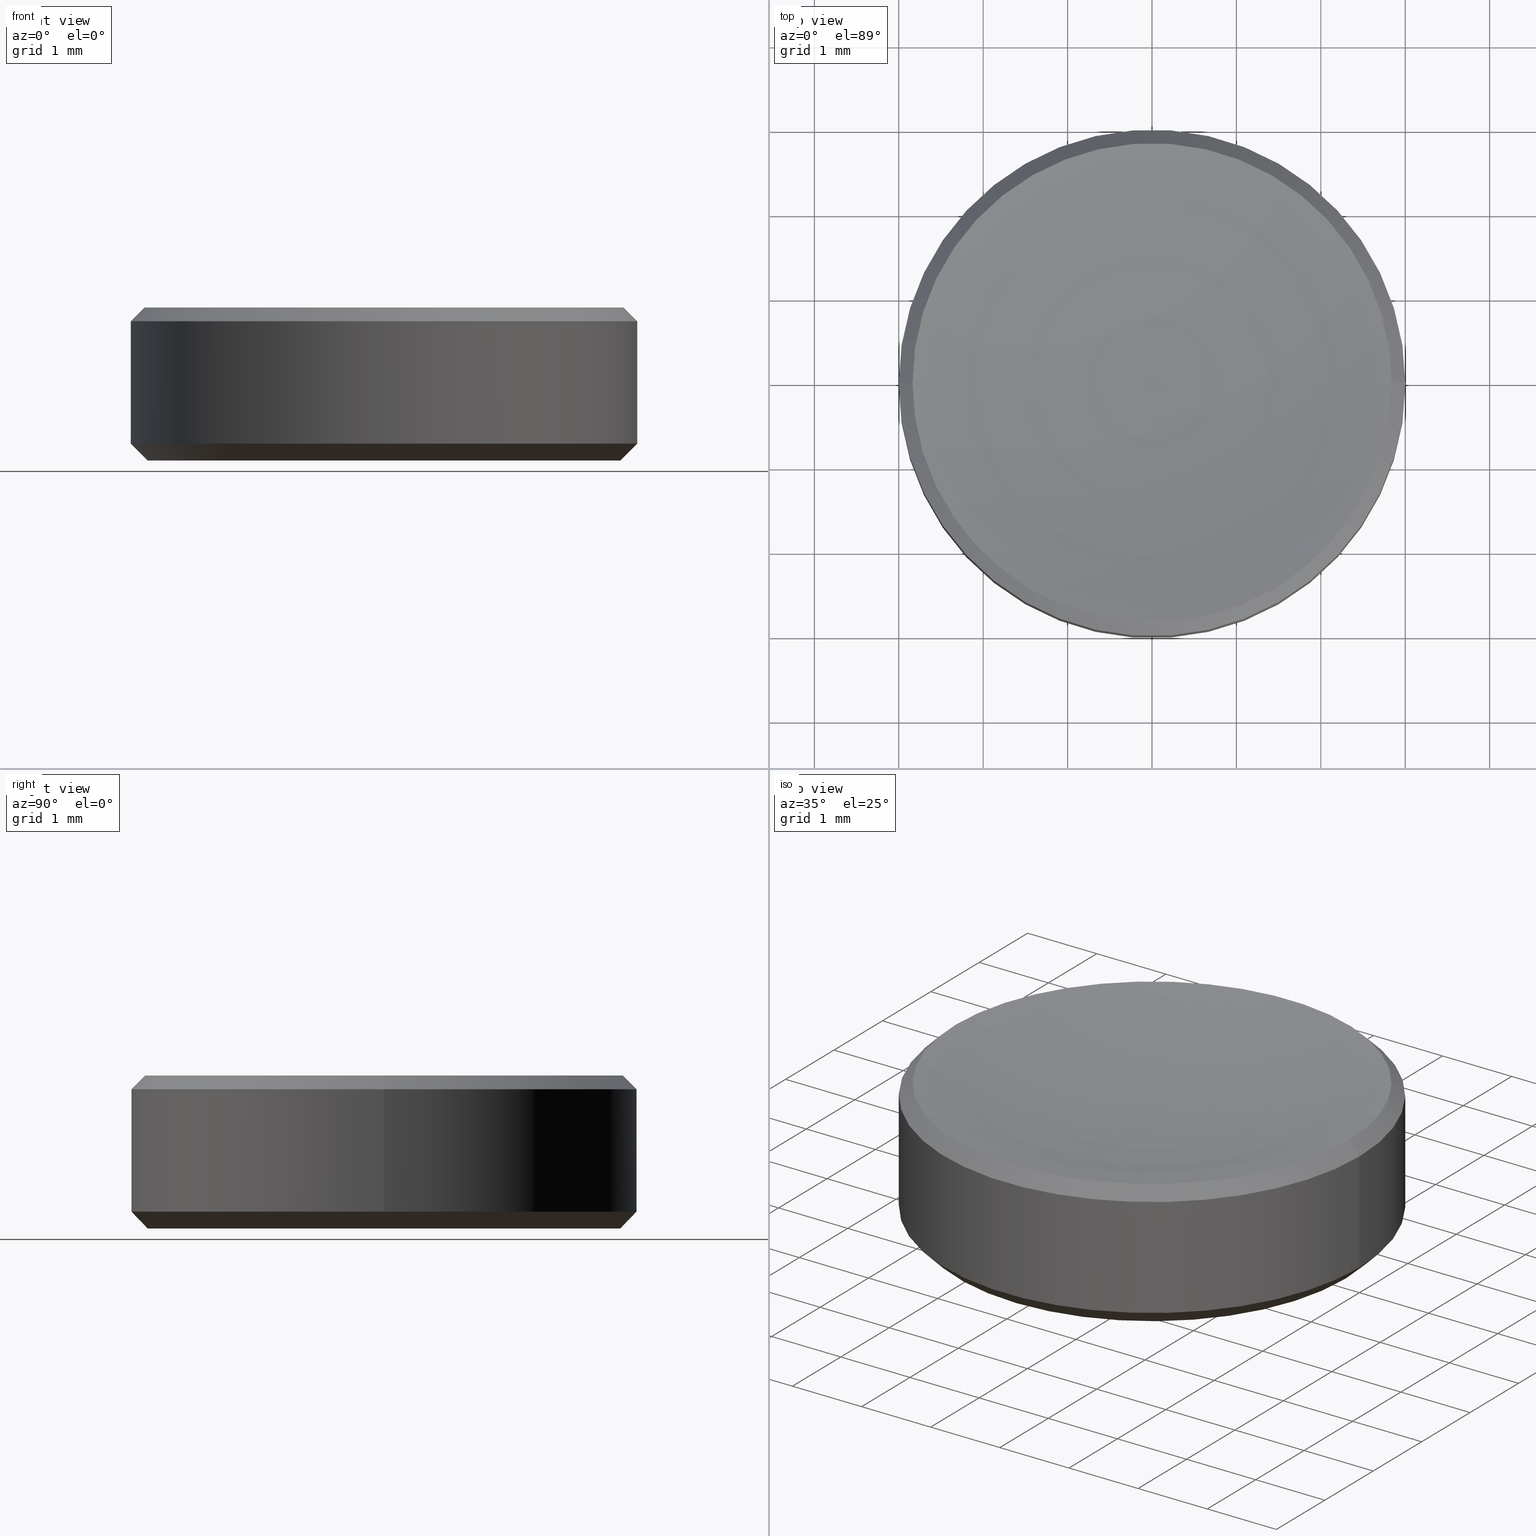
[diagram: canonical four-view strip — front | top / right | iso, engineering-drawing reading convention]
A machine part, canonical four-view strip (front | top / right | iso — engineering-drawing reading convention). The complete STEP part file that produces these views, byte-faithful:
ISO-10303-21;
HEADER;
FILE_DESCRIPTION (( 'STEP AP214' ),
    '1' );
FILE_NAME ('GL13-006A-025.STEP',
    '2022-10-25T12:39:48',
    ( '' ),
    ( '' ),
    'SwSTEP 2.0',
    'SolidWorks 2022',
    '' );
FILE_SCHEMA (( 'AUTOMOTIVE_DESIGN' ));
ENDSEC;

DATA;
#1 = PRODUCT_DEFINITION_SHAPE ( 'NONE', 'NONE',  #56 ) ;
#2 = CLOSED_SHELL ( 'NONE', ( #7, #88, #24, #41, #158, #206, #100, #141, #87 ) ) ;
#3 = UNCERTAINTY_MEASURE_WITH_UNIT (LENGTH_MEASURE( 1.000000000000000082E-05 ), #57, 'distance_accuracy_value', 'NONE');
#4 = CIRCLE ( 'NONE', #10, 2.799999999999998046 ) ;
#5 = CARTESIAN_POINT ( 'NONE',  ( -0.01425091764846800335, 1.745234068310886743E-18, 14.40999213444168348 ) ) ;
#6 = CARTESIAN_POINT ( 'NONE',  ( 2.837518045210084772, 0.000000000000000000, 1.812481954789914917 ) ) ;
#7 = ADVANCED_FACE ( 'NONE', ( #40 ), #227, .T. ) ;
#8 = EDGE_CURVE ( 'NONE', #235, #187, #142, .T. ) ;
#9 = AXIS2_PLACEMENT_3D ( 'NONE', #244, #54, #135 ) ;
#10 = AXIS2_PLACEMENT_3D ( 'NONE', #240, #105, #49 ) ;
#11 = PLANE ( 'NONE',  #99 ) ;
#12 = CARTESIAN_POINT ( 'NONE',  ( -3.000000000000000000, 3.673940397442059868E-16, 0.2000000000000011768 ) ) ;
#13 = STYLED_ITEM ( 'NONE', ( #143 ), #122 ) ;
#14 = CARTESIAN_POINT ( 'NONE',  ( 0.01425091764846800335, 0.000000000000000000, 14.40999213444168348 ) ) ;
#15 = CIRCLE ( 'NONE', #176, 2.837518045210084772 ) ;
#16 = APPLICATION_PROTOCOL_DEFINITION ( 'draft international standard', 'automotive_design', 1998, #162 ) ;
#17 =( NAMED_UNIT ( * ) PLANE_ANGLE_UNIT ( ) SI_UNIT ( $, .RADIAN. ) );
#18 = AXIS2_PLACEMENT_3D ( 'NONE', #185, #241, #51 ) ;
#19 = MECHANICAL_DESIGN_GEOMETRIC_PRESENTATION_REPRESENTATION (  '', ( #264 ), #167 ) ;
#20 = VERTEX_POINT ( 'NONE', #147 ) ;
#21 = DIRECTION ( 'NONE',  ( 0.000000000000000000, 0.000000000000000000, 1.000000000000000000 ) ) ;
#22 = CARTESIAN_POINT ( 'NONE',  ( 0.000000000000000000, 0.000000000000000000, 0.2000000000000011768 ) ) ;
#23 = CARTESIAN_POINT ( 'NONE',  ( 3.000000000000000000, 0.000000000000000000, 1.650000000000000355 ) ) ;
#24 = ADVANCED_FACE ( 'NONE', ( #195 ), #228, .T. ) ;
#25 = ORIENTED_EDGE ( 'NONE', *, *, #243, .F. ) ;
#26 = VECTOR ( 'NONE', #45, 1000.000000000000000 ) ;
#27 = AXIS2_PLACEMENT_3D ( 'NONE', #213, #32, #75 ) ;
#28 = LINE ( 'NONE', #257, #124 ) ;
#29 = CARTESIAN_POINT ( 'NONE',  ( -2.837518045210084772, 0.000000000000000000, 1.812481954789914917 ) ) ;
#30 = DIRECTION ( 'NONE',  ( 1.000000000000000000, 0.000000000000000000, 0.000000000000000000 ) ) ;
#31 = CARTESIAN_POINT ( 'NONE',  ( 0.000000000000000000, 0.000000000000000000, 14.40999213444168348 ) ) ;
#32 = DIRECTION ( 'NONE',  ( 0.000000000000000000, 0.000000000000000000, -1.000000000000000000 ) ) ;
#33 = FILL_AREA_STYLE ('',( #242 ) ) ;
#34 = CARTESIAN_POINT ( 'NONE',  ( 0.000000000000000000, 0.000000000000000000, 1.500000000000000000 ) ) ;
#35 = AXIS2_PLACEMENT_3D ( 'NONE', #22, #104, #265 ) ;
#36 =( NAMED_UNIT ( * ) PLANE_ANGLE_UNIT ( ) SI_UNIT ( $, .RADIAN. ) );
#37 = ORIENTED_EDGE ( 'NONE', *, *, #133, .F. ) ;
#38 = ORIENTED_EDGE ( 'NONE', *, *, #102, .T. ) ;
#39 = AXIS2_PLACEMENT_3D ( 'NONE', #252, #134, #111 ) ;
#40 = FACE_OUTER_BOUND ( 'NONE', #250, .T. ) ;
#41 = ADVANCED_FACE ( 'NONE', ( #58 ), #247, .F. ) ;
#42 = DIRECTION ( 'NONE',  ( 0.000000000000000000, 0.000000000000000000, -1.000000000000000000 ) ) ;
#43 = CARTESIAN_POINT ( 'NONE',  ( 0.000000000000000000, 0.000000000000000000, 1.836970198721029934E-16 ) ) ;
#44 = CARTESIAN_POINT ( 'NONE',  ( 0.000000000000000000, 0.000000000000000000, 1.812481954789914917 ) ) ;
#45 = DIRECTION ( 'NONE',  ( -0.000000000000000000, -0.000000000000000000, 1.000000000000000000 ) ) ;
#46 = CIRCLE ( 'NONE', #204, 3.000000000000000000 ) ;
#47 = AXIS2_PLACEMENT_3D ( 'NONE', #14, #55, #114 ) ;
#48 = DIRECTION ( 'NONE',  ( 1.000000000000000000, 0.000000000000000000, 0.000000000000000000 ) ) ;
#49 = DIRECTION ( 'NONE',  ( 1.000000000000000000, 0.000000000000000000, 0.000000000000000000 ) ) ;
#50 = ORIENTED_EDGE ( 'NONE', *, *, #63, .T. ) ;
#51 = DIRECTION ( 'NONE',  ( -1.000000000000000000, 0.000000000000000000, 0.000000000000000000 ) ) ;
#52 = DIRECTION ( 'NONE',  ( -0.000000000000000000, -0.000000000000000000, 1.000000000000000000 ) ) ;
#53 = EDGE_CURVE ( 'NONE', #235, #210, #85, .T. ) ;
#54 = DIRECTION ( 'NONE',  ( -0.000000000000000000, -0.000000000000000000, 1.000000000000000000 ) ) ;
#55 = DIRECTION ( 'NONE',  ( 0.000000000000000000, -1.000000000000000000, 0.000000000000000000 ) ) ;
#56 = PRODUCT_DEFINITION ( 'δ֪', '', #150, #259 ) ;
#57 =( LENGTH_UNIT ( ) NAMED_UNIT ( * ) SI_UNIT ( .MILLI., .METRE. ) );
#58 = FACE_OUTER_BOUND ( 'NONE', #103, .T. ) ;
#59 = ORIENTED_EDGE ( 'NONE', *, *, #68, .F. ) ;
#60 = APPLICATION_PROTOCOL_DEFINITION ( 'draft international standard', 'automotive_design', 1998, #151 ) ;
#61 = ORIENTED_EDGE ( 'NONE', *, *, #193, .T. ) ;
#62 = EDGE_LOOP ( 'NONE', ( #211, #249, #106 ) ) ;
#63 = EDGE_CURVE ( 'NONE', #107, #210, #129, .T. ) ;
#64 = AXIS2_PLACEMENT_3D ( 'NONE', #263, #21, #226 ) ;
#65 = EDGE_LOOP ( 'NONE', ( #231, #233, #262, #50 ) ) ;
#66 = ORIENTED_EDGE ( 'NONE', *, *, #222, .F. ) ;
#67 = DIRECTION ( 'NONE',  ( -1.000000000000000000, 1.224646799147353207E-16, 0.000000000000000000 ) ) ;
#68 = EDGE_CURVE ( 'NONE', #187, #107, #239, .T. ) ;
#69 = COLOUR_RGB ( '',1.000000000000000000, 1.000000000000000000, 1.000000000000000000 ) ;
#70 = DIRECTION ( 'NONE',  ( 0.000000000000000000, 0.000000000000000000, -1.000000000000000000 ) ) ;
#71 = UNCERTAINTY_MEASURE_WITH_UNIT (LENGTH_MEASURE( 1.000000000000000082E-05 ), #117, 'distance_accuracy_value', 'NONE');
#72 = AXIS2_PLACEMENT_3D ( 'NONE', #34, #93, #261 ) ;
#73 = PRESENTATION_LAYER_ASSIGNMENT (  '', '', ( #264 ) ) ;
#74 =( LENGTH_UNIT ( ) NAMED_UNIT ( * ) SI_UNIT ( .MILLI., .METRE. ) );
#75 = DIRECTION ( 'NONE',  ( 1.000000000000000000, 0.000000000000000000, 0.000000000000000000 ) ) ;
#76 = EDGE_LOOP ( 'NONE', ( #98, #115, #251, #171 ) ) ;
#77 = SURFACE_STYLE_USAGE ( .BOTH. , #260 ) ;
#78 = VECTOR ( 'NONE', #196, 1000.000000000000114 ) ;
#79 = SURFACE_STYLE_USAGE ( .BOTH. , #172 ) ;
#80 = ORIENTED_EDGE ( 'NONE', *, *, #133, .T. ) ;
#81 = FILL_AREA_STYLE ('',( #95 ) ) ;
#82 = EDGE_CURVE ( 'NONE', #187, #235, #46, .T. ) ;
#83 = DIRECTION ( 'NONE',  ( -0.000000000000000000, -0.000000000000000000, 1.000000000000000000 ) ) ;
#84 = AXIS2_PLACEMENT_3D ( 'NONE', #202, #91, #258 ) ;
#85 = LINE ( 'NONE', #131, #26 ) ;
#86 = CARTESIAN_POINT ( 'NONE',  ( -2.799999999999998046, 3.551475717527323339E-16, 1.836970198721029934E-16 ) ) ;
#87 = ADVANCED_FACE ( 'NONE', ( #205 ), #224, .T. ) ;
#88 = ADVANCED_FACE ( 'NONE', ( #163 ), #246, .T. ) ;
#89 = DIRECTION ( 'NONE',  ( -0.000000000000000000, -0.000000000000000000, 1.000000000000000000 ) ) ;
#90 = LINE ( 'NONE', #181, #130 ) ;
#91 = DIRECTION ( 'NONE',  ( -0.000000000000000000, -0.000000000000000000, 1.000000000000000000 ) ) ;
#92 = ORIENTED_EDGE ( 'NONE', *, *, #146, .F. ) ;
#93 = DIRECTION ( 'NONE',  ( -0.000000000000000000, -0.000000000000000000, 1.000000000000000000 ) ) ;
#94 =( GEOMETRIC_REPRESENTATION_CONTEXT ( 3 ) GLOBAL_UNCERTAINTY_ASSIGNED_CONTEXT ( ( #71 ) ) GLOBAL_UNIT_ASSIGNED_CONTEXT ( ( #117, #36, #188 ) ) REPRESENTATION_CONTEXT ( 'NONE', 'WORKASPACE' ) );
#95 = FILL_AREA_STYLE_COLOUR ( '', #69 ) ;
#96 = PRODUCT ( 'GL13-006A-025', 'GL13-006A-025', '', ( #120 ) ) ;
#97 = EDGE_LOOP ( 'NONE', ( #92, #118, #173, #230 ) ) ;
#98 = ORIENTED_EDGE ( 'NONE', *, *, #193, .F. ) ;
#99 = AXIS2_PLACEMENT_3D ( 'NONE', #43, #160, #48 ) ;
#100 = ADVANCED_FACE ( 'NONE', ( #220 ), #11, .F. ) ;
#101 = CIRCLE ( 'NONE', #197, 3.000000000000000000 ) ;
#102 = EDGE_CURVE ( 'NONE', #169, #20, #165, .T. ) ;
#103 = EDGE_LOOP ( 'NONE', ( #66, #38, #155 ) ) ;
#104 = DIRECTION ( 'NONE',  ( -0.000000000000000000, -0.000000000000000000, 1.000000000000000000 ) ) ;
#105 = DIRECTION ( 'NONE',  ( 0.000000000000000000, 0.000000000000000000, -1.000000000000000000 ) ) ;
#106 = ORIENTED_EDGE ( 'NONE', *, *, #232, .T. ) ;
#107 = VERTEX_POINT ( 'NONE', #23 ) ;
#108 = DIRECTION ( 'NONE',  ( -0.000000000000000000, -0.000000000000000000, 1.000000000000000000 ) ) ;
#109 = DIRECTION ( 'NONE',  ( 1.000000000000000000, 0.000000000000000000, 0.000000000000000000 ) ) ;
#110 = CARTESIAN_POINT ( 'NONE',  ( 3.000000000000000000, 0.000000000000000000, 1.500000000000000000 ) ) ;
#111 = DIRECTION ( 'NONE',  ( 1.000000000000000000, 0.000000000000000000, 0.000000000000000000 ) ) ;
#112 = EDGE_CURVE ( 'NONE', #20, #210, #217, .T. ) ;
#113 = CIRCLE ( 'NONE', #47, 12.90999999999999837 ) ;
#114 = DIRECTION ( 'NONE',  ( 0.000000000000000000, 0.000000000000000000, -1.000000000000000000 ) ) ;
#115 = ORIENTED_EDGE ( 'NONE', *, *, #243, .T. ) ;
#116 =( NAMED_UNIT ( * ) PLANE_ANGLE_UNIT ( ) SI_UNIT ( $, .RADIAN. ) );
#117 =( LENGTH_UNIT ( ) NAMED_UNIT ( * ) SI_UNIT ( .MILLI., .METRE. ) );
#118 = ORIENTED_EDGE ( 'NONE', *, *, #154, .F. ) ;
#119 = PRESENTATION_LAYER_ASSIGNMENT (  '', '', ( #13 ) ) ;
#120 = PRODUCT_CONTEXT ( 'NONE', #162, 'mechanical' ) ;
#121 = ORIENTED_EDGE ( 'NONE', *, *, #146, .T. ) ;
#122 = ADVANCED_BREP_SHAPE_REPRESENTATION ( 'GL13-006A-025', ( #216, #64 ), #94 ) ;
#123 = ORIENTED_EDGE ( 'NONE', *, *, #82, .T. ) ;
#124 = VECTOR ( 'NONE', #236, 1000.000000000000114 ) ;
#125 = ORIENTED_EDGE ( 'NONE', *, *, #53, .T. ) ;
#126 = SHAPE_DEFINITION_REPRESENTATION ( #1, #122 ) ;
#127 = ORIENTED_EDGE ( 'NONE', *, *, #166, .F. ) ;
#128 = CARTESIAN_POINT ( 'NONE',  ( 2.837518045210084772, 3.474957391589384965E-16, 1.812481954789914917 ) ) ;
#129 = CIRCLE ( 'NONE', #182, 3.000000000000000000 ) ;
#130 = VECTOR ( 'NONE', #161, 1000.000000000000114 ) ;
#131 = CARTESIAN_POINT ( 'NONE',  ( -3.000000000000000000, 3.673940397442059868E-16, 1.500000000000000000 ) ) ;
#132 = DIRECTION ( 'NONE',  ( 0.7071067811865493491, 8.659560562354957510E-17, -0.7071067811865456854 ) ) ;
#133 = EDGE_CURVE ( 'NONE', #208, #144, #4, .T. ) ;
#134 = DIRECTION ( 'NONE',  ( -0.000000000000000000, -0.000000000000000000, 1.000000000000000000 ) ) ;
#135 = DIRECTION ( 'NONE',  ( 1.000000000000000000, 0.000000000000000000, 0.000000000000000000 ) ) ;
#136 = CARTESIAN_POINT ( 'NONE',  ( -3.000000000000000000, 3.673940397442059868E-16, 1.650000000000000355 ) ) ;
#137 = TOROIDAL_SURFACE ( 'NONE', #234, 0.01425091764846800335, 12.90999999999999837 ) ;
#138 = CARTESIAN_POINT ( 'NONE',  ( 0.000000000000000000, 0.000000000000000000, 1.500000000000000000 ) ) ;
#139 =( NAMED_UNIT ( * ) SI_UNIT ( $, .STERADIAN. ) SOLID_ANGLE_UNIT ( ) );
#140 = VECTOR ( 'NONE', #132, 1000.000000000000114 ) ;
#141 = ADVANCED_FACE ( 'NONE', ( #179 ), #215, .T. ) ;
#142 = CIRCLE ( 'NONE', #35, 3.000000000000000000 ) ;
#143 = PRESENTATION_STYLE_ASSIGNMENT (( #79 ) ) ;
#144 = VERTEX_POINT ( 'NONE', #86 ) ;
#145 = CIRCLE ( 'NONE', #27, 2.799999999999998046 ) ;
#146 = EDGE_CURVE ( 'NONE', #164, #107, #237, .T. ) ;
#147 = CARTESIAN_POINT ( 'NONE',  ( -2.837518045210084772, 3.474957391589384965E-16, 1.812481954789914917 ) ) ;
#148 =( NAMED_UNIT ( * ) SI_UNIT ( $, .STERADIAN. ) SOLID_ANGLE_UNIT ( ) );
#149 = ORIENTED_EDGE ( 'NONE', *, *, #8, .F. ) ;
#150 = PRODUCT_DEFINITION_FORMATION_WITH_SPECIFIED_SOURCE ( '�κ�', '', #96, .NOT_KNOWN. ) ;
#151 = APPLICATION_CONTEXT ( 'automotive_design' ) ;
#152 = ORIENTED_EDGE ( 'NONE', *, *, #112, .F. ) ;
#153 = CARTESIAN_POINT ( 'NONE',  ( 3.000000000000000000, 0.000000000000000000, 0.2000000000000011768 ) ) ;
#154 = EDGE_CURVE ( 'NONE', #20, #164, #15, .T. ) ;
#155 = ORIENTED_EDGE ( 'NONE', *, *, #154, .T. ) ;
#156 = DIRECTION ( 'NONE',  ( 1.224646799147353207E-16, 1.000000000000000000, 0.000000000000000000 ) ) ;
#157 =( GEOMETRIC_REPRESENTATION_CONTEXT ( 3 ) GLOBAL_UNCERTAINTY_ASSIGNED_CONTEXT ( ( #3 ) ) GLOBAL_UNIT_ASSIGNED_CONTEXT ( ( #57, #17, #148 ) ) REPRESENTATION_CONTEXT ( 'NONE', 'WORKASPACE' ) );
#158 = ADVANCED_FACE ( 'NONE', ( #238 ), #137, .F. ) ;
#159 = DIRECTION ( 'NONE',  ( -1.000000000000000000, 0.000000000000000000, 0.000000000000000000 ) ) ;
#160 = DIRECTION ( 'NONE',  ( 0.000000000000000000, -0.000000000000000000, 1.000000000000000000 ) ) ;
#161 = DIRECTION ( 'NONE',  ( -0.7071067811865490160, 8.659560562354952580E-17, 0.7071067811865460184 ) ) ;
#162 = APPLICATION_CONTEXT ( 'automotive_design' ) ;
#163 = FACE_OUTER_BOUND ( 'NONE', #76, .T. ) ;
#164 = VERTEX_POINT ( 'NONE', #6 ) ;
#165 = CIRCLE ( 'NONE', #200, 12.90999999999999837 ) ;
#166 = EDGE_CURVE ( 'NONE', #210, #107, #101, .T. ) ;
#167 =( GEOMETRIC_REPRESENTATION_CONTEXT ( 3 ) GLOBAL_UNCERTAINTY_ASSIGNED_CONTEXT ( ( #212 ) ) GLOBAL_UNIT_ASSIGNED_CONTEXT ( ( #74, #116, #139 ) ) REPRESENTATION_CONTEXT ( 'NONE', 'WORKASPACE' ) );
#168 = VECTOR ( 'NONE', #178, 1000.000000000000000 ) ;
#169 = VERTEX_POINT ( 'NONE', #214 ) ;
#170 = MECHANICAL_DESIGN_GEOMETRIC_PRESENTATION_REPRESENTATION (  '', ( #13 ), #157 ) ;
#171 = ORIENTED_EDGE ( 'NONE', *, *, #191, .F. ) ;
#172 = SURFACE_SIDE_STYLE ('',( #189 ) ) ;
#173 = ORIENTED_EDGE ( 'NONE', *, *, #112, .T. ) ;
#174 = EDGE_LOOP ( 'NONE', ( #80, #61 ) ) ;
#175 = DIRECTION ( 'NONE',  ( -1.000000000000000000, 0.000000000000000000, 0.000000000000000000 ) ) ;
#176 = AXIS2_PLACEMENT_3D ( 'NONE', #254, #194, #199 ) ;
#177 = EDGE_LOOP ( 'NONE', ( #25, #37, #209, #149 ) ) ;
#178 = DIRECTION ( 'NONE',  ( -0.000000000000000000, -0.000000000000000000, 1.000000000000000000 ) ) ;
#179 = FACE_OUTER_BOUND ( 'NONE', #177, .T. ) ;
#180 = AXIS2_PLACEMENT_3D ( 'NONE', #44, #42, #190 ) ;
#181 = CARTESIAN_POINT ( 'NONE',  ( -3.000000000000000000, 3.673940397442059868E-16, 0.2000000000000011768 ) ) ;
#182 = AXIS2_PLACEMENT_3D ( 'NONE', #218, #70, #159 ) ;
#183 = AXIS2_PLACEMENT_3D ( 'NONE', #138, #89, #223 ) ;
#184 = SURFACE_STYLE_FILL_AREA ( #33 ) ;
#185 = CARTESIAN_POINT ( 'NONE',  ( 0.000000000000000000, 0.000000000000000000, 1.812481954789914917 ) ) ;
#186 = CARTESIAN_POINT ( 'NONE',  ( 2.799999999999998046, 0.000000000000000000, 1.836970198721029934E-16 ) ) ;
#187 = VERTEX_POINT ( 'NONE', #153 ) ;
#188 =( NAMED_UNIT ( * ) SI_UNIT ( $, .STERADIAN. ) SOLID_ANGLE_UNIT ( ) );
#189 = SURFACE_STYLE_FILL_AREA ( #81 ) ;
#190 = DIRECTION ( 'NONE',  ( -1.000000000000000000, 0.000000000000000000, 0.000000000000000000 ) ) ;
#191 = EDGE_CURVE ( 'NONE', #208, #187, #28, .T. ) ;
#192 = ORIENTED_EDGE ( 'NONE', *, *, #232, .F. ) ;
#193 = EDGE_CURVE ( 'NONE', #144, #208, #145, .T. ) ;
#194 = DIRECTION ( 'NONE',  ( -0.000000000000000000, -0.000000000000000000, 1.000000000000000000 ) ) ;
#195 = FACE_OUTER_BOUND ( 'NONE', #229, .T. ) ;
#196 = DIRECTION ( 'NONE',  ( -0.7071067811865493491, 0.000000000000000000, -0.7071067811865456854 ) ) ;
#197 = AXIS2_PLACEMENT_3D ( 'NONE', #198, #219, #175 ) ;
#198 = CARTESIAN_POINT ( 'NONE',  ( 0.000000000000000000, 0.000000000000000000, 1.650000000000000355 ) ) ;
#199 = DIRECTION ( 'NONE',  ( 1.000000000000000000, 0.000000000000000000, 0.000000000000000000 ) ) ;
#200 = AXIS2_PLACEMENT_3D ( 'NONE', #5, #156, #67 ) ;
#201 = FACE_OUTER_BOUND ( 'NONE', #65, .T. ) ;
#202 = CARTESIAN_POINT ( 'NONE',  ( 0.000000000000000000, 0.000000000000000000, 1.812481954789914917 ) ) ;
#203 = DIRECTION ( 'NONE',  ( 1.000000000000000000, 0.000000000000000000, 0.000000000000000000 ) ) ;
#204 = AXIS2_PLACEMENT_3D ( 'NONE', #266, #52, #203 ) ;
#205 = FACE_OUTER_BOUND ( 'NONE', #97, .T. ) ;
#206 = ADVANCED_FACE ( 'NONE', ( #201 ), #221, .T. ) ;
#207 = CIRCLE ( 'NONE', #84, 2.837518045210084772 ) ;
#208 = VERTEX_POINT ( 'NONE', #186 ) ;
#209 = ORIENTED_EDGE ( 'NONE', *, *, #191, .T. ) ;
#210 = VERTEX_POINT ( 'NONE', #136 ) ;
#211 = ORIENTED_EDGE ( 'NONE', *, *, #102, .F. ) ;
#212 = UNCERTAINTY_MEASURE_WITH_UNIT (LENGTH_MEASURE( 1.000000000000000082E-05 ), #74, 'distance_accuracy_value', 'NONE');
#213 = CARTESIAN_POINT ( 'NONE',  ( 0.000000000000000000, 0.000000000000000000, 1.836970198721029934E-16 ) ) ;
#214 = CARTESIAN_POINT ( 'NONE',  ( 0.000000000000000000, 0.000000000000000000, 1.500000000000000000 ) ) ;
#215 = CONICAL_SURFACE ( 'NONE', #39, 3.000000000000000000, 0.7853981633974504994 ) ;
#216 = MANIFOLD_SOLID_BREP ( '����2', #2 ) ;
#217 = LINE ( 'NONE', #29, #78 ) ;
#218 = CARTESIAN_POINT ( 'NONE',  ( 0.000000000000000000, 0.000000000000000000, 1.650000000000000355 ) ) ;
#219 = DIRECTION ( 'NONE',  ( 0.000000000000000000, 0.000000000000000000, -1.000000000000000000 ) ) ;
#220 = FACE_OUTER_BOUND ( 'NONE', #174, .T. ) ;
#221 = CYLINDRICAL_SURFACE ( 'NONE', #183, 3.000000000000000000 ) ;
#222 = EDGE_CURVE ( 'NONE', #169, #164, #113, .T. ) ;
#223 = DIRECTION ( 'NONE',  ( 1.000000000000000000, 0.000000000000000000, 0.000000000000000000 ) ) ;
#224 = CONICAL_SURFACE ( 'NONE', #18, 2.837518045210084772, 0.7853981633974509435 ) ;
#225 = PRESENTATION_STYLE_ASSIGNMENT (( #77 ) ) ;
#226 = DIRECTION ( 'NONE',  ( 1.000000000000000000, 0.000000000000000000, 0.000000000000000000 ) ) ;
#227 = CONICAL_SURFACE ( 'NONE', #180, 2.837518045210084772, 0.7853981633974509435 ) ;
#228 = CYLINDRICAL_SURFACE ( 'NONE', #72, 3.000000000000000000 ) ;
#229 = EDGE_LOOP ( 'NONE', ( #123, #125, #253, #59 ) ) ;
#230 = ORIENTED_EDGE ( 'NONE', *, *, #63, .F. ) ;
#231 = ORIENTED_EDGE ( 'NONE', *, *, #53, .F. ) ;
#232 = EDGE_CURVE ( 'NONE', #164, #20, #207, .T. ) ;
#233 = ORIENTED_EDGE ( 'NONE', *, *, #8, .T. ) ;
#234 = AXIS2_PLACEMENT_3D ( 'NONE', #31, #83, #109 ) ;
#235 = VERTEX_POINT ( 'NONE', #12 ) ;
#236 = DIRECTION ( 'NONE',  ( 0.7071067811865490160, 0.000000000000000000, 0.7071067811865460184 ) ) ;
#237 = LINE ( 'NONE', #128, #140 ) ;
#238 = FACE_OUTER_BOUND ( 'NONE', #62, .T. ) ;
#239 = LINE ( 'NONE', #110, #168 ) ;
#240 = CARTESIAN_POINT ( 'NONE',  ( 0.000000000000000000, 0.000000000000000000, 1.836970198721029934E-16 ) ) ;
#241 = DIRECTION ( 'NONE',  ( 0.000000000000000000, 0.000000000000000000, -1.000000000000000000 ) ) ;
#242 = FILL_AREA_STYLE_COLOUR ( '', #256 ) ;
#243 = EDGE_CURVE ( 'NONE', #144, #235, #90, .T. ) ;
#244 = CARTESIAN_POINT ( 'NONE',  ( 0.000000000000000000, 0.000000000000000000, 0.2000000000000011768 ) ) ;
#245 = AXIS2_PLACEMENT_3D ( 'NONE', #255, #108, #30 ) ;
#246 = CONICAL_SURFACE ( 'NONE', #9, 3.000000000000000000, 0.7853981633974504994 ) ;
#247 = TOROIDAL_SURFACE ( 'NONE', #245, 0.01425091764846800335, 12.90999999999999837 ) ;
#248 = PRODUCT_RELATED_PRODUCT_CATEGORY ( 'part', '', ( #96 ) ) ;
#249 = ORIENTED_EDGE ( 'NONE', *, *, #222, .T. ) ;
#250 = EDGE_LOOP ( 'NONE', ( #192, #121, #127, #152 ) ) ;
#251 = ORIENTED_EDGE ( 'NONE', *, *, #82, .F. ) ;
#252 = CARTESIAN_POINT ( 'NONE',  ( 0.000000000000000000, 0.000000000000000000, 0.2000000000000011768 ) ) ;
#253 = ORIENTED_EDGE ( 'NONE', *, *, #166, .T. ) ;
#254 = CARTESIAN_POINT ( 'NONE',  ( 0.000000000000000000, 0.000000000000000000, 1.812481954789914917 ) ) ;
#255 = CARTESIAN_POINT ( 'NONE',  ( 0.000000000000000000, 0.000000000000000000, 14.40999213444168348 ) ) ;
#256 = COLOUR_RGB ( '',1.000000000000000000, 1.000000000000000000, 1.000000000000000000 ) ;
#257 = CARTESIAN_POINT ( 'NONE',  ( 3.000000000000000000, 0.000000000000000000, 0.2000000000000011768 ) ) ;
#258 = DIRECTION ( 'NONE',  ( 1.000000000000000000, 0.000000000000000000, 0.000000000000000000 ) ) ;
#259 = PRODUCT_DEFINITION_CONTEXT ( 'detailed design', #151, 'design' ) ;
#260 = SURFACE_SIDE_STYLE ('',( #184 ) ) ;
#261 = DIRECTION ( 'NONE',  ( 1.000000000000000000, 0.000000000000000000, 0.000000000000000000 ) ) ;
#262 = ORIENTED_EDGE ( 'NONE', *, *, #68, .T. ) ;
#263 = CARTESIAN_POINT ( 'NONE',  ( 0.000000000000000000, 0.000000000000000000, 0.000000000000000000 ) ) ;
#264 = STYLED_ITEM ( 'NONE', ( #225 ), #216 ) ;
#265 = DIRECTION ( 'NONE',  ( 1.000000000000000000, 0.000000000000000000, 0.000000000000000000 ) ) ;
#266 = CARTESIAN_POINT ( 'NONE',  ( 0.000000000000000000, 0.000000000000000000, 0.2000000000000011768 ) ) ;
ENDSEC;
END-ISO-10303-21;
